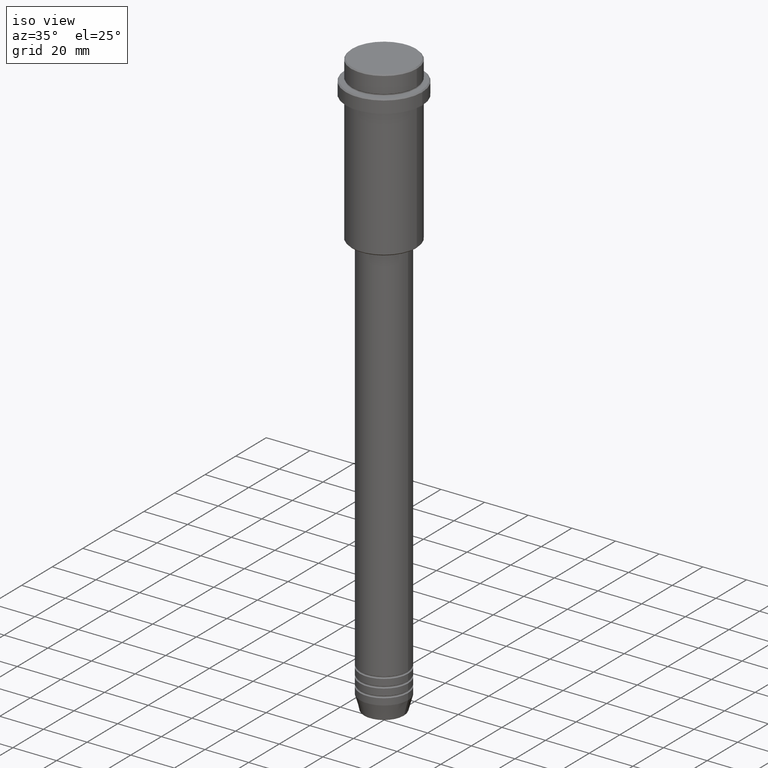
[diagram: clean part render]
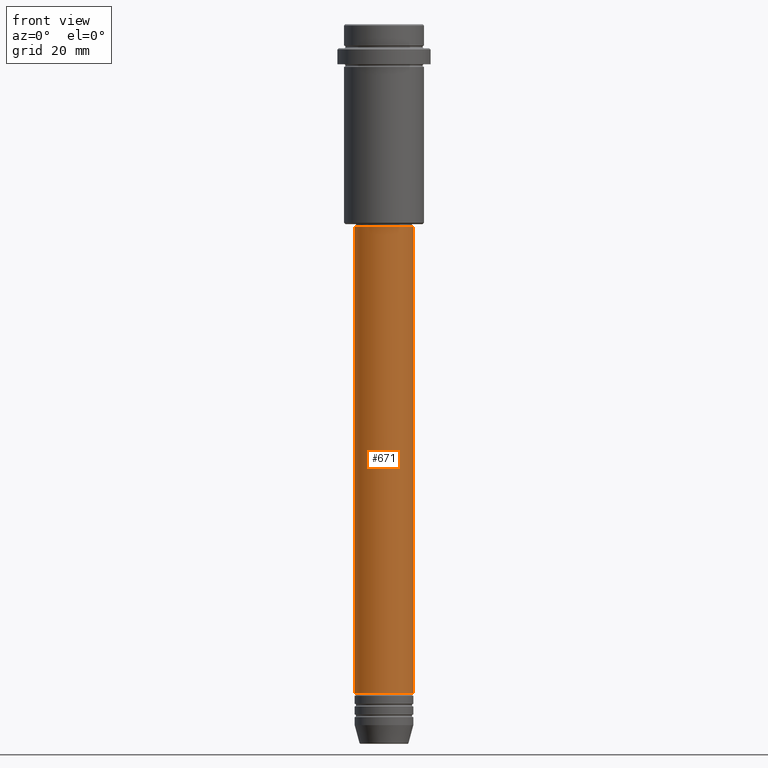
[diagram: tour spotlight — one face highlighted and labeled with its STEP entity id]
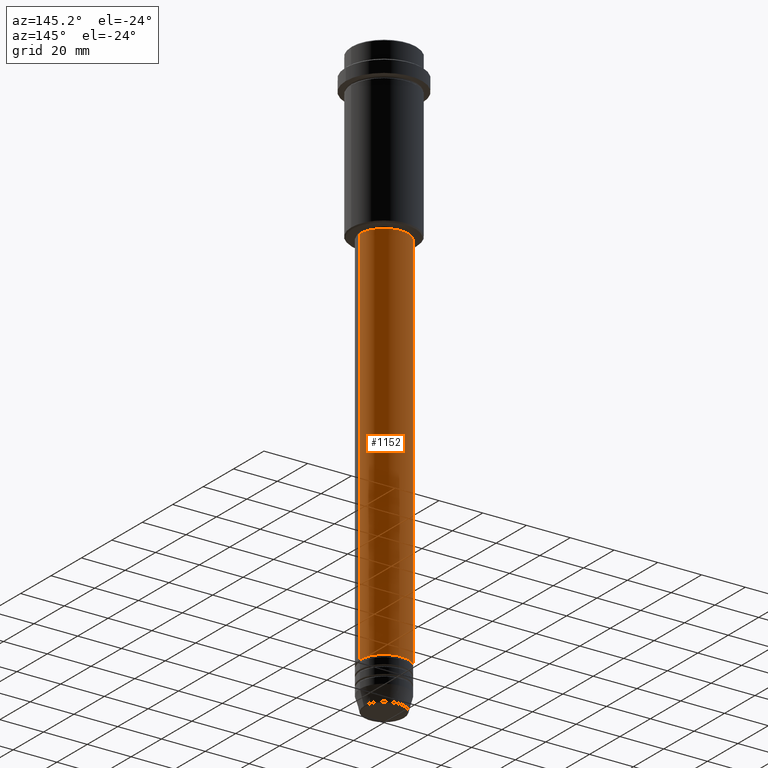
[diagram: tour spotlight — one face highlighted and labeled with its STEP entity id]
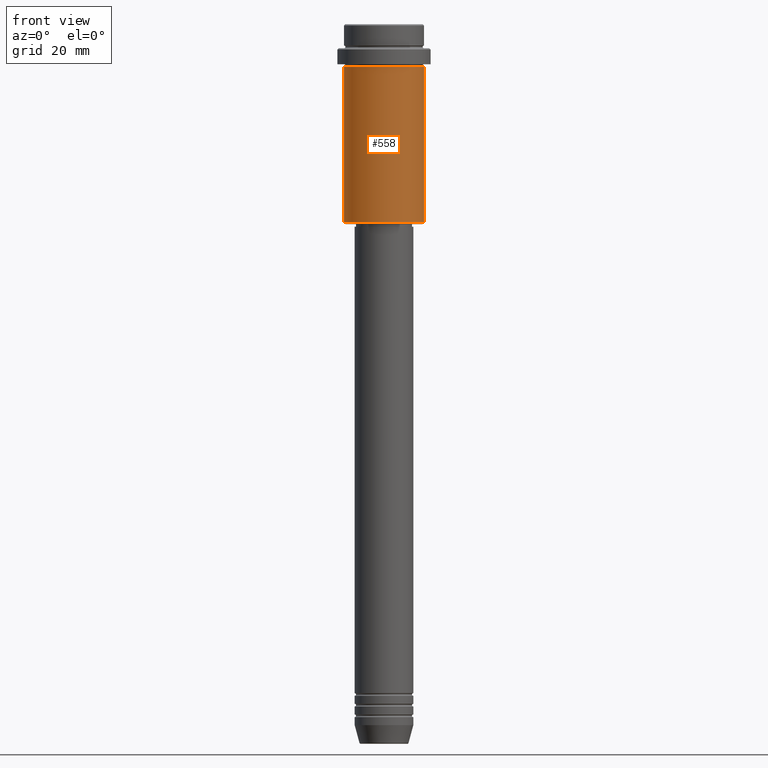
[diagram: tour spotlight — one face highlighted and labeled with its STEP entity id]
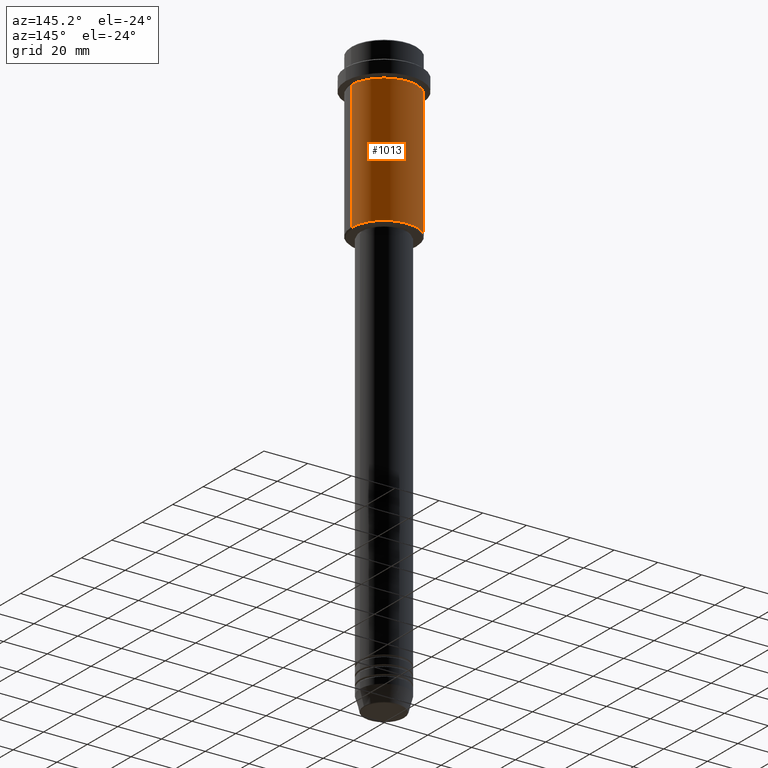
[diagram: tour spotlight — one face highlighted and labeled with its STEP entity id]
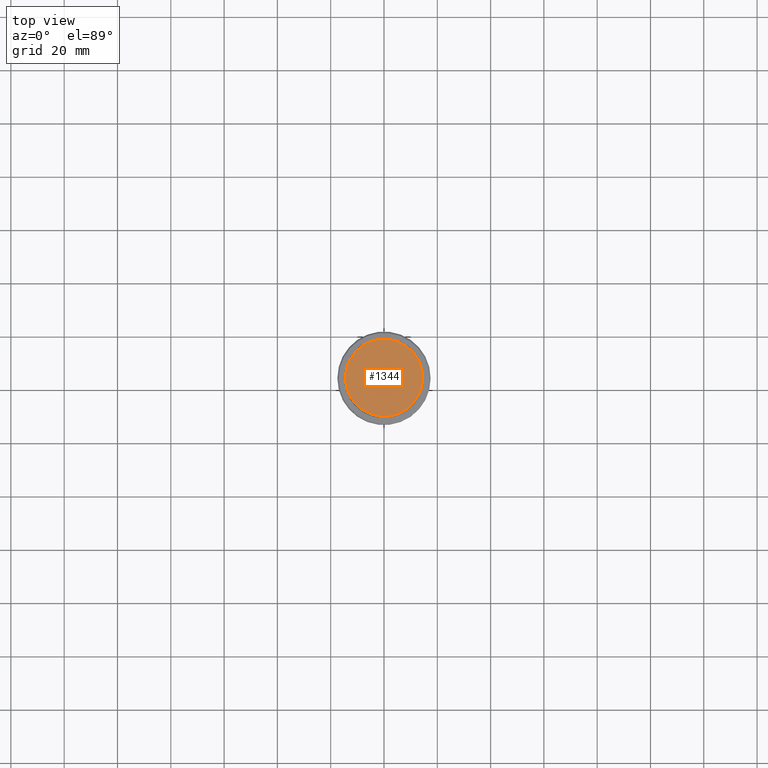
[diagram: tour spotlight — one face highlighted and labeled with its STEP entity id]
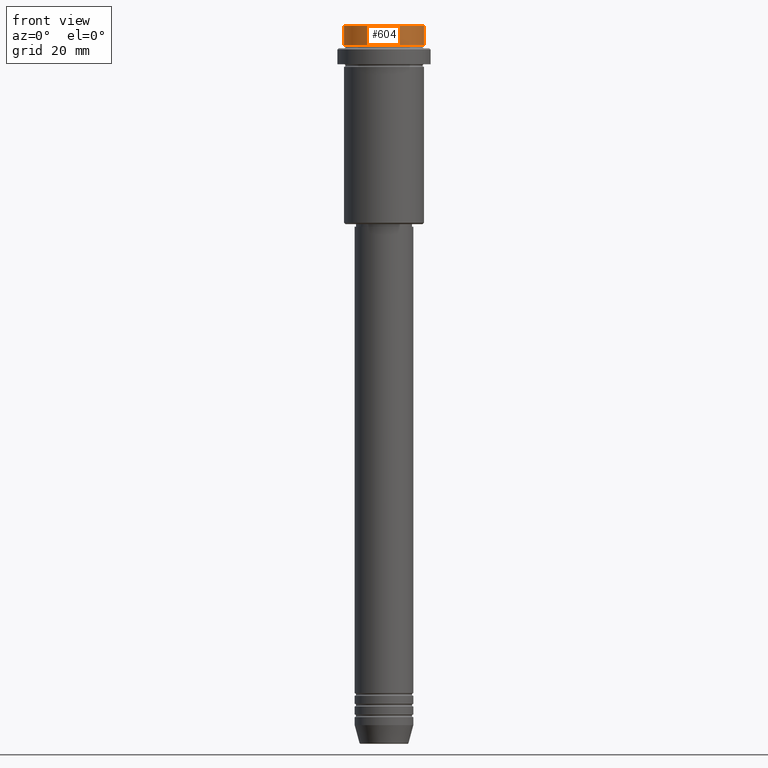
[diagram: tour spotlight — one face highlighted and labeled with its STEP entity id]
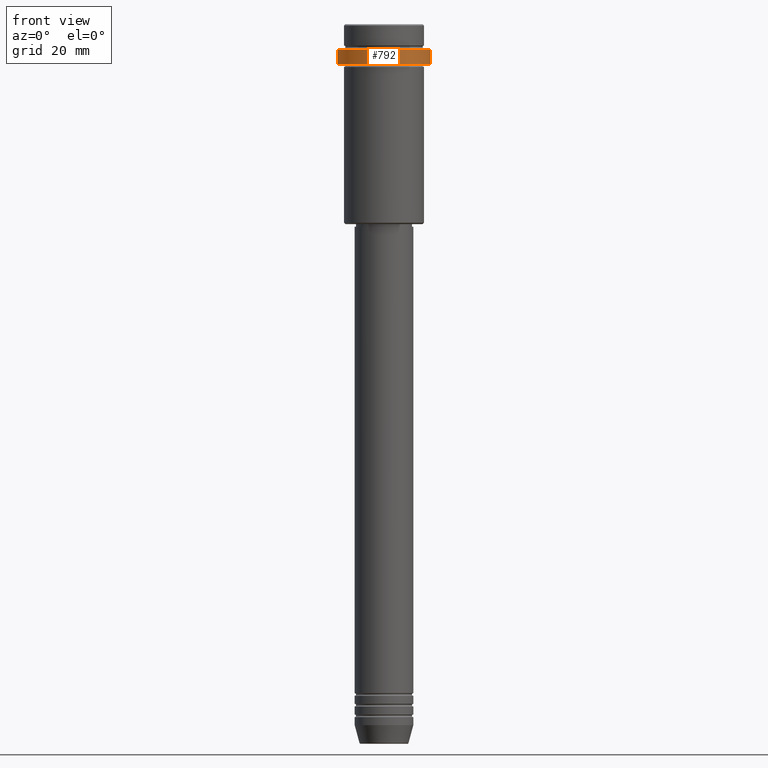
[diagram: tour spotlight — one face highlighted and labeled with its STEP entity id]
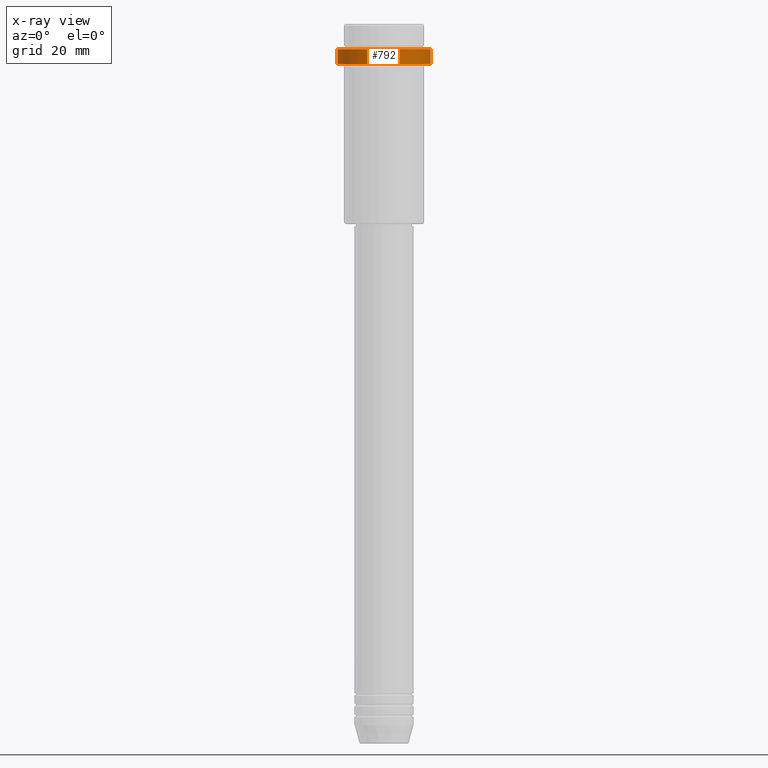
[diagram: x-ray of the same camera — body ghosted, this tour face saturated]
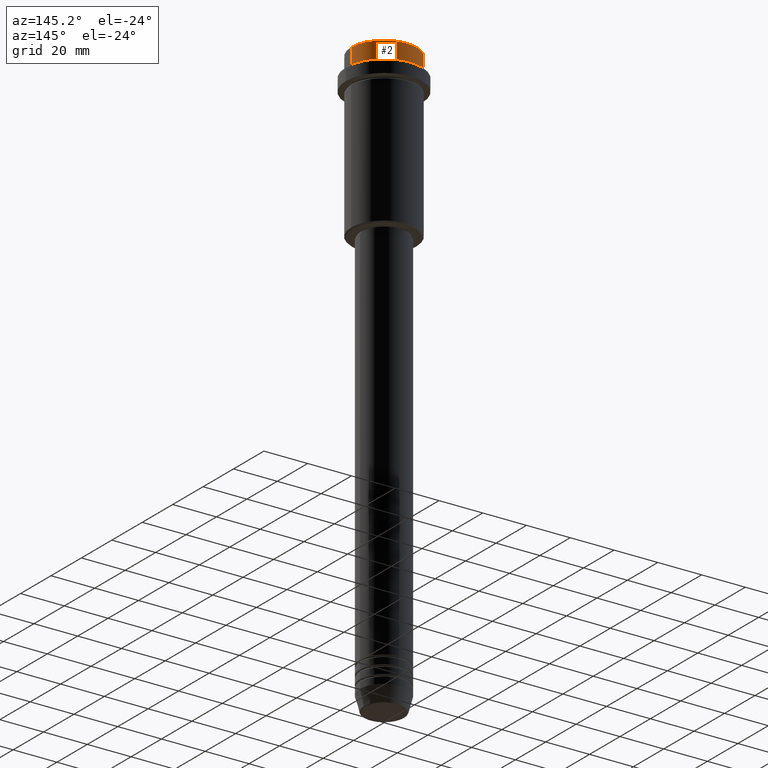
[diagram: tour spotlight — one face highlighted and labeled with its STEP entity id]
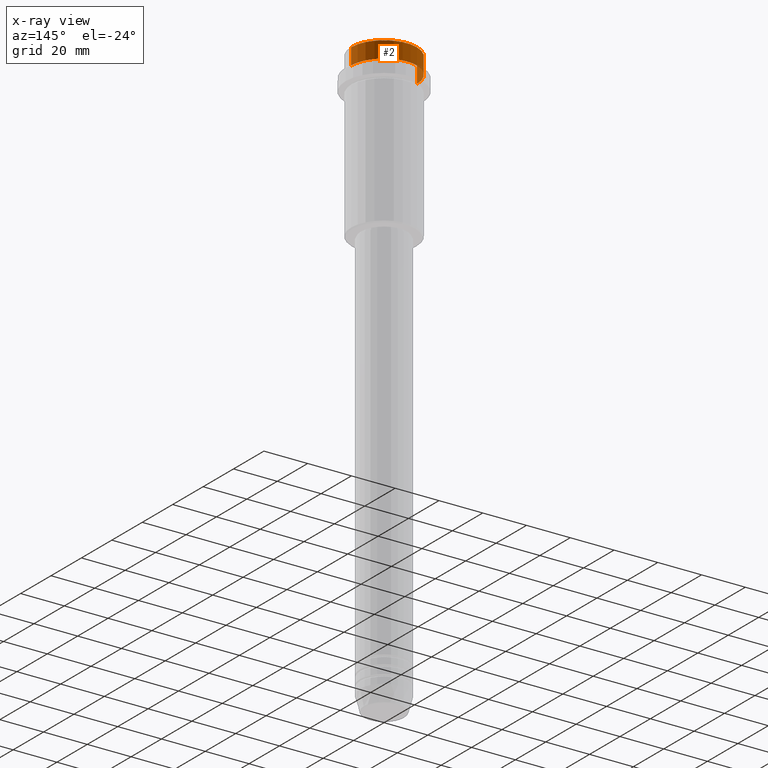
[diagram: x-ray of the same camera — body ghosted, this tour face saturated]
A machine part: a face-by-face anatomy tour. The part has 52 B-rep faces; the first image is the clean iso view, then the 8 largest visible faces are spotlighted one at a time (largest first), each with its STEP entity span.

Face 1 — front view, entity #671. In plain terms, the highlighted cylindrical surface (edge-blend (fillet) strip) has radius 11 mm, axis along (-0, -0, 1).
Definition (entity closure, byte-faithful):
#51 = CARTESIAN_POINT ( 'NONE',  ( 10.99999999999999822, 0.000000000000000000, -76.00000000000001421 ) ) ;
#132 = VERTEX_POINT ( 'NONE', #51 ) ;
#168 = CYLINDRICAL_SURFACE ( 'NONE', #205, 11.00000000000000000 ) ;
#200 = VECTOR ( 'NONE', #389, 1000.000000000000000 ) ;
#205 = AXIS2_PLACEMENT_3D ( 'NONE', #622, #509, #1354 ) ;
#254 = VECTOR ( 'NONE', #1153, 1000.000000000000000 ) ;
#273 = EDGE_CURVE ( 'NONE', #1343, #806, #401, .T. ) ;
#274 = FACE_OUTER_BOUND ( 'NONE', #494, .T. ) ;
#291 = CARTESIAN_POINT ( 'NONE',  ( -10.99999999999999822, 1.347111479062088207E-15, -76.00000000000001421 ) ) ;
#302 = CARTESIAN_POINT ( 'NONE',  ( 0.000000000000000000, 0.000000000000000000, -76.00000000000001421 ) ) ;
#319 = ORIENTED_EDGE ( 'NONE', *, *, #1085, .T. ) ;
#323 = VERTEX_POINT ( 'NONE', #291 ) ;
#389 = DIRECTION ( 'NONE',  ( -0.000000000000000000, -0.000000000000000000, 1.000000000000000000 ) ) ;
#401 = CIRCLE ( 'NONE', #490, 11.00000000000000000 ) ;
#472 = LINE ( 'NONE', #1016, #200 ) ;
#490 = AXIS2_PLACEMENT_3D ( 'NONE', #499, #818, #1010 ) ;
#494 = EDGE_LOOP ( 'NONE', ( #538, #743, #319, #796 ) ) ;
#499 = CARTESIAN_POINT ( 'NONE',  ( 0.000000000000000000, 0.000000000000000000, -250.9999999999998863 ) ) ;
#509 = DIRECTION ( 'NONE',  ( -0.000000000000000000, -0.000000000000000000, 1.000000000000000000 ) ) ;
#533 = DIRECTION ( 'NONE',  ( 1.000000000000000000, 0.000000000000000000, 0.000000000000000000 ) ) ;
#538 = ORIENTED_EDGE ( 'NONE', *, *, #632, .F. ) ;
#622 = CARTESIAN_POINT ( 'NONE',  ( 0.000000000000000000, 0.000000000000000000, 0.000000000000000000 ) ) ;
#632 = EDGE_CURVE ( 'NONE', #1343, #323, #472, .T. ) ;
#643 = CARTESIAN_POINT ( 'NONE',  ( 11.00000000000000000, 0.000000000000000000, 0.000000000000000000 ) ) ;
#646 = DIRECTION ( 'NONE',  ( -0.000000000000000000, -0.000000000000000000, 1.000000000000000000 ) ) ;
#671 = ADVANCED_FACE ( 'NONE', ( #274 ), #168, .T. ) ;
#693 = LINE ( 'NONE', #643, #254 ) ;
#743 = ORIENTED_EDGE ( 'NONE', *, *, #273, .T. ) ;
#796 = ORIENTED_EDGE ( 'NONE', *, *, #871, .F. ) ;
#806 = VERTEX_POINT ( 'NONE', #1149 ) ;
#818 = DIRECTION ( 'NONE',  ( -0.000000000000000000, -0.000000000000000000, 1.000000000000000000 ) ) ;
#823 = CIRCLE ( 'NONE', #1105, 10.99999999999999822 ) ;
#871 = EDGE_CURVE ( 'NONE', #323, #132, #823, .T. ) ;
#879 = CARTESIAN_POINT ( 'NONE',  ( -11.00000000000000000, 1.347111479062088405E-15, -250.9999999999998863 ) ) ;
#1010 = DIRECTION ( 'NONE',  ( 1.000000000000000000, 0.000000000000000000, 0.000000000000000000 ) ) ;
#1016 = CARTESIAN_POINT ( 'NONE',  ( -11.00000000000000000, 1.347111479062088405E-15, 0.000000000000000000 ) ) ;
#1085 = EDGE_CURVE ( 'NONE', #806, #132, #693, .T. ) ;
#1105 = AXIS2_PLACEMENT_3D ( 'NONE', #302, #646, #533 ) ;
#1149 = CARTESIAN_POINT ( 'NONE',  ( 11.00000000000000000, 0.000000000000000000, -250.9999999999998863 ) ) ;
#1153 = DIRECTION ( 'NONE',  ( -0.000000000000000000, -0.000000000000000000, 1.000000000000000000 ) ) ;
#1343 = VERTEX_POINT ( 'NONE', #879 ) ;
#1354 = DIRECTION ( 'NONE',  ( 1.000000000000000000, 0.000000000000000000, 0.000000000000000000 ) ) ;

Face 2 — auxiliary view, entity #1152. In plain terms, the highlighted cylindrical surface (edge-blend (fillet) strip) has radius 11 mm, axis along (-0, -0, 1).
Definition (entity closure, byte-faithful):
#51 = CARTESIAN_POINT ( 'NONE',  ( 10.99999999999999822, 0.000000000000000000, -76.00000000000001421 ) ) ;
#86 = ORIENTED_EDGE ( 'NONE', *, *, #632, .T. ) ;
#105 = AXIS2_PLACEMENT_3D ( 'NONE', #673, #1073, #856 ) ;
#130 = CYLINDRICAL_SURFACE ( 'NONE', #561, 11.00000000000000000 ) ;
#132 = VERTEX_POINT ( 'NONE', #51 ) ;
#165 = FACE_OUTER_BOUND ( 'NONE', #1326, .T. ) ;
#200 = VECTOR ( 'NONE', #389, 1000.000000000000000 ) ;
#254 = VECTOR ( 'NONE', #1153, 1000.000000000000000 ) ;
#291 = CARTESIAN_POINT ( 'NONE',  ( -10.99999999999999822, 1.347111479062088207E-15, -76.00000000000001421 ) ) ;
#323 = VERTEX_POINT ( 'NONE', #291 ) ;
#372 = AXIS2_PLACEMENT_3D ( 'NONE', #667, #873, #956 ) ;
#389 = DIRECTION ( 'NONE',  ( -0.000000000000000000, -0.000000000000000000, 1.000000000000000000 ) ) ;
#397 = CARTESIAN_POINT ( 'NONE',  ( 0.000000000000000000, 0.000000000000000000, 0.000000000000000000 ) ) ;
#472 = LINE ( 'NONE', #1016, #200 ) ;
#561 = AXIS2_PLACEMENT_3D ( 'NONE', #397, #828, #1255 ) ;
#611 = CIRCLE ( 'NONE', #105, 10.99999999999999822 ) ;
#627 = EDGE_CURVE ( 'NONE', #806, #1343, #1311, .T. ) ;
#632 = EDGE_CURVE ( 'NONE', #1343, #323, #472, .T. ) ;
#643 = CARTESIAN_POINT ( 'NONE',  ( 11.00000000000000000, 0.000000000000000000, 0.000000000000000000 ) ) ;
#667 = CARTESIAN_POINT ( 'NONE',  ( 0.000000000000000000, 0.000000000000000000, -250.9999999999998863 ) ) ;
#673 = CARTESIAN_POINT ( 'NONE',  ( 0.000000000000000000, 0.000000000000000000, -76.00000000000001421 ) ) ;
#687 = ORIENTED_EDGE ( 'NONE', *, *, #1085, .F. ) ;
#693 = LINE ( 'NONE', #643, #254 ) ;
#806 = VERTEX_POINT ( 'NONE', #1149 ) ;
#828 = DIRECTION ( 'NONE',  ( -0.000000000000000000, -0.000000000000000000, 1.000000000000000000 ) ) ;
#838 = ORIENTED_EDGE ( 'NONE', *, *, #627, .T. ) ;
#856 = DIRECTION ( 'NONE',  ( 1.000000000000000000, 0.000000000000000000, 0.000000000000000000 ) ) ;
#873 = DIRECTION ( 'NONE',  ( -0.000000000000000000, -0.000000000000000000, 1.000000000000000000 ) ) ;
#879 = CARTESIAN_POINT ( 'NONE',  ( -11.00000000000000000, 1.347111479062088405E-15, -250.9999999999998863 ) ) ;
#884 = ORIENTED_EDGE ( 'NONE', *, *, #1198, .F. ) ;
#956 = DIRECTION ( 'NONE',  ( 1.000000000000000000, 0.000000000000000000, 0.000000000000000000 ) ) ;
#1016 = CARTESIAN_POINT ( 'NONE',  ( -11.00000000000000000, 1.347111479062088405E-15, 0.000000000000000000 ) ) ;
#1073 = DIRECTION ( 'NONE',  ( -0.000000000000000000, -0.000000000000000000, 1.000000000000000000 ) ) ;
#1085 = EDGE_CURVE ( 'NONE', #806, #132, #693, .T. ) ;
#1149 = CARTESIAN_POINT ( 'NONE',  ( 11.00000000000000000, 0.000000000000000000, -250.9999999999998863 ) ) ;
#1152 = ADVANCED_FACE ( 'NONE', ( #165 ), #130, .T. ) ;
#1153 = DIRECTION ( 'NONE',  ( -0.000000000000000000, -0.000000000000000000, 1.000000000000000000 ) ) ;
#1198 = EDGE_CURVE ( 'NONE', #132, #323, #611, .T. ) ;
#1255 = DIRECTION ( 'NONE',  ( 1.000000000000000000, 0.000000000000000000, 0.000000000000000000 ) ) ;
#1311 = CIRCLE ( 'NONE', #372, 11.00000000000000000 ) ;
#1326 = EDGE_LOOP ( 'NONE', ( #838, #86, #884, #687 ) ) ;
#1343 = VERTEX_POINT ( 'NONE', #879 ) ;

Face 3 — front view, entity #558. In plain terms, the highlighted cylindrical surface (partial cylindrical patch) has radius 15 mm, axis along (-0, -0, 1).
Definition (entity closure, byte-faithful):
#37 = AXIS2_PLACEMENT_3D ( 'NONE', #994, #565, #230 ) ;
#39 = ORIENTED_EDGE ( 'NONE', *, *, #1008, .F. ) ;
#95 = DIRECTION ( 'NONE',  ( -0.000000000000000000, -0.000000000000000000, 1.000000000000000000 ) ) ;
#96 = DIRECTION ( 'NONE',  ( -0.000000000000000000, -0.000000000000000000, 1.000000000000000000 ) ) ;
#110 = EDGE_CURVE ( 'NONE', #219, #1015, #964, .T. ) ;
#160 = DIRECTION ( 'NONE',  ( -0.000000000000000000, -0.000000000000000000, 1.000000000000000000 ) ) ;
#203 = ORIENTED_EDGE ( 'NONE', *, *, #110, .T. ) ;
#219 = VERTEX_POINT ( 'NONE', #356 ) ;
#225 = CARTESIAN_POINT ( 'NONE',  ( 0.000000000000000000, 0.000000000000000000, 0.000000000000000000 ) ) ;
#230 = DIRECTION ( 'NONE',  ( -1.000000000000000000, 0.000000000000000000, 0.000000000000000000 ) ) ;
#256 = VECTOR ( 'NONE', #96, 1000.000000000000000 ) ;
#303 = ORIENTED_EDGE ( 'NONE', *, *, #1323, .F. ) ;
#356 = CARTESIAN_POINT ( 'NONE',  ( -15.00000000000000000, 1.836970198721029589E-15, -74.49999999999994316 ) ) ;
#357 = CARTESIAN_POINT ( 'NONE',  ( 0.000000000000000000, 0.000000000000000000, -16.00000000000000000 ) ) ;
#406 = LINE ( 'NONE', #501, #776 ) ;
#432 = CARTESIAN_POINT ( 'NONE',  ( -15.00000000000000355, 1.836970198721029983E-15, -16.00000000000000000 ) ) ;
#436 = CARTESIAN_POINT ( 'NONE',  ( 15.00000000000000178, 0.000000000000000000, -16.00000000000000000 ) ) ;
#441 = LINE ( 'NONE', #864, #256 ) ;
#489 = CIRCLE ( 'NONE', #514, 15.00000000000000178 ) ;
#501 = CARTESIAN_POINT ( 'NONE',  ( 15.00000000000000000, 0.000000000000000000, 0.000000000000000000 ) ) ;
#514 = AXIS2_PLACEMENT_3D ( 'NONE', #357, #786, #672 ) ;
#558 = ADVANCED_FACE ( 'NONE', ( #1288 ), #1304, .T. ) ;
#565 = DIRECTION ( 'NONE',  ( -0.000000000000000000, -0.000000000000000000, 1.000000000000000000 ) ) ;
#663 = EDGE_CURVE ( 'NONE', #1015, #910, #406, .T. ) ;
#672 = DIRECTION ( 'NONE',  ( 1.000000000000000000, 0.000000000000000000, 0.000000000000000000 ) ) ;
#776 = VECTOR ( 'NONE', #160, 1000.000000000000000 ) ;
#786 = DIRECTION ( 'NONE',  ( -0.000000000000000000, -0.000000000000000000, 1.000000000000000000 ) ) ;
#864 = CARTESIAN_POINT ( 'NONE',  ( -15.00000000000000000, 1.836970198721029589E-15, 0.000000000000000000 ) ) ;
#910 = VERTEX_POINT ( 'NONE', #436 ) ;
#964 = CIRCLE ( 'NONE', #37, 15.00000000000000000 ) ;
#994 = CARTESIAN_POINT ( 'NONE',  ( 0.000000000000000000, 0.000000000000000000, -74.49999999999994316 ) ) ;
#1008 = EDGE_CURVE ( 'NONE', #1251, #910, #489, .T. ) ;
#1015 = VERTEX_POINT ( 'NONE', #1207 ) ;
#1207 = CARTESIAN_POINT ( 'NONE',  ( 15.00000000000000000, 0.000000000000000000, -74.49999999999994316 ) ) ;
#1217 = ORIENTED_EDGE ( 'NONE', *, *, #663, .T. ) ;
#1251 = VERTEX_POINT ( 'NONE', #432 ) ;
#1288 = FACE_OUTER_BOUND ( 'NONE', #1373, .T. ) ;
#1304 = CYLINDRICAL_SURFACE ( 'NONE', #1318, 15.00000000000000000 ) ;
#1318 = AXIS2_PLACEMENT_3D ( 'NONE', #225, #95, #1415 ) ;
#1323 = EDGE_CURVE ( 'NONE', #219, #1251, #441, .T. ) ;
#1373 = EDGE_LOOP ( 'NONE', ( #303, #203, #1217, #39 ) ) ;
#1415 = DIRECTION ( 'NONE',  ( 1.000000000000000000, 0.000000000000000000, 0.000000000000000000 ) ) ;

Face 4 — auxiliary view, entity #1013. In plain terms, the highlighted cylindrical surface (partial cylindrical patch) has radius 15 mm, axis along (-0, -0, 1).
Definition (entity closure, byte-faithful):
#49 = CARTESIAN_POINT ( 'NONE',  ( 0.000000000000000000, 0.000000000000000000, -16.00000000000000000 ) ) ;
#84 = CIRCLE ( 'NONE', #1031, 15.00000000000000000 ) ;
#96 = DIRECTION ( 'NONE',  ( -0.000000000000000000, -0.000000000000000000, 1.000000000000000000 ) ) ;
#154 = AXIS2_PLACEMENT_3D ( 'NONE', #49, #1216, #907 ) ;
#160 = DIRECTION ( 'NONE',  ( -0.000000000000000000, -0.000000000000000000, 1.000000000000000000 ) ) ;
#174 = ORIENTED_EDGE ( 'NONE', *, *, #663, .F. ) ;
#183 = AXIS2_PLACEMENT_3D ( 'NONE', #553, #987, #1086 ) ;
#219 = VERTEX_POINT ( 'NONE', #356 ) ;
#256 = VECTOR ( 'NONE', #96, 1000.000000000000000 ) ;
#332 = CYLINDRICAL_SURFACE ( 'NONE', #183, 15.00000000000000000 ) ;
#342 = DIRECTION ( 'NONE',  ( -0.000000000000000000, -0.000000000000000000, 1.000000000000000000 ) ) ;
#356 = CARTESIAN_POINT ( 'NONE',  ( -15.00000000000000000, 1.836970198721029589E-15, -74.49999999999994316 ) ) ;
#406 = LINE ( 'NONE', #501, #776 ) ;
#432 = CARTESIAN_POINT ( 'NONE',  ( -15.00000000000000355, 1.836970198721029983E-15, -16.00000000000000000 ) ) ;
#436 = CARTESIAN_POINT ( 'NONE',  ( 15.00000000000000178, 0.000000000000000000, -16.00000000000000000 ) ) ;
#441 = LINE ( 'NONE', #864, #256 ) ;
#452 = CARTESIAN_POINT ( 'NONE',  ( 0.000000000000000000, 0.000000000000000000, -74.49999999999994316 ) ) ;
#501 = CARTESIAN_POINT ( 'NONE',  ( 15.00000000000000000, 0.000000000000000000, 0.000000000000000000 ) ) ;
#526 = ORIENTED_EDGE ( 'NONE', *, *, #1323, .T. ) ;
#553 = CARTESIAN_POINT ( 'NONE',  ( 0.000000000000000000, 0.000000000000000000, 0.000000000000000000 ) ) ;
#578 = EDGE_CURVE ( 'NONE', #1015, #219, #84, .T. ) ;
#663 = EDGE_CURVE ( 'NONE', #1015, #910, #406, .T. ) ;
#708 = EDGE_LOOP ( 'NONE', ( #820, #526, #1353, #174 ) ) ;
#776 = VECTOR ( 'NONE', #160, 1000.000000000000000 ) ;
#777 = FACE_OUTER_BOUND ( 'NONE', #708, .T. ) ;
#820 = ORIENTED_EDGE ( 'NONE', *, *, #578, .T. ) ;
#864 = CARTESIAN_POINT ( 'NONE',  ( -15.00000000000000000, 1.836970198721029589E-15, 0.000000000000000000 ) ) ;
#866 = CIRCLE ( 'NONE', #154, 15.00000000000000178 ) ;
#907 = DIRECTION ( 'NONE',  ( 1.000000000000000000, 0.000000000000000000, 0.000000000000000000 ) ) ;
#910 = VERTEX_POINT ( 'NONE', #436 ) ;
#987 = DIRECTION ( 'NONE',  ( -0.000000000000000000, -0.000000000000000000, 1.000000000000000000 ) ) ;
#1013 = ADVANCED_FACE ( 'NONE', ( #777 ), #332, .T. ) ;
#1015 = VERTEX_POINT ( 'NONE', #1207 ) ;
#1031 = AXIS2_PLACEMENT_3D ( 'NONE', #452, #342, #1200 ) ;
#1079 = EDGE_CURVE ( 'NONE', #910, #1251, #866, .T. ) ;
#1086 = DIRECTION ( 'NONE',  ( 1.000000000000000000, 0.000000000000000000, 0.000000000000000000 ) ) ;
#1200 = DIRECTION ( 'NONE',  ( -1.000000000000000000, 0.000000000000000000, 0.000000000000000000 ) ) ;
#1207 = CARTESIAN_POINT ( 'NONE',  ( 15.00000000000000000, 0.000000000000000000, -74.49999999999994316 ) ) ;
#1216 = DIRECTION ( 'NONE',  ( -0.000000000000000000, -0.000000000000000000, 1.000000000000000000 ) ) ;
#1251 = VERTEX_POINT ( 'NONE', #432 ) ;
#1323 = EDGE_CURVE ( 'NONE', #219, #1251, #441, .T. ) ;
#1353 = ORIENTED_EDGE ( 'NONE', *, *, #1079, .F. ) ;

Face 5 — top view, entity #1344. In plain terms, the highlighted planar face has unit normal (0, -0, 1).
Definition (entity closure, byte-faithful):
#27 = ORIENTED_EDGE ( 'NONE', *, *, #331, .T. ) ;
#118 = EDGE_CURVE ( 'NONE', #500, #1069, #610, .T. ) ;
#119 = FACE_OUTER_BOUND ( 'NONE', #147, .T. ) ;
#147 = EDGE_LOOP ( 'NONE', ( #394, #27 ) ) ;
#277 = DIRECTION ( 'NONE',  ( 1.000000000000000000, 0.000000000000000000, 0.000000000000000000 ) ) ;
#309 = AXIS2_PLACEMENT_3D ( 'NONE', #659, #383, #277 ) ;
#331 = EDGE_CURVE ( 'NONE', #1069, #500, #564, .T. ) ;
#334 = AXIS2_PLACEMENT_3D ( 'NONE', #1230, #566, #1005 ) ;
#383 = DIRECTION ( 'NONE',  ( -0.000000000000000000, -0.000000000000000000, 1.000000000000000000 ) ) ;
#394 = ORIENTED_EDGE ( 'NONE', *, *, #118, .T. ) ;
#396 = DIRECTION ( 'NONE',  ( -0.000000000000000000, -0.000000000000000000, 1.000000000000000000 ) ) ;
#445 = AXIS2_PLACEMENT_3D ( 'NONE', #1356, #396, #1368 ) ;
#477 = CARTESIAN_POINT ( 'NONE',  ( 14.50000000000003908, 1.806354028742348168E-15, 0.000000000000000000 ) ) ;
#500 = VERTEX_POINT ( 'NONE', #567 ) ;
#564 = CIRCLE ( 'NONE', #309, 14.50000000000003908 ) ;
#566 = DIRECTION ( 'NONE',  ( 0.000000000000000000, -0.000000000000000000, 1.000000000000000000 ) ) ;
#567 = CARTESIAN_POINT ( 'NONE',  ( -14.50000000000003908, 0.000000000000000000, 0.000000000000000000 ) ) ;
#610 = CIRCLE ( 'NONE', #445, 14.50000000000003908 ) ;
#659 = CARTESIAN_POINT ( 'NONE',  ( 0.000000000000000000, 0.000000000000000000, 0.000000000000000000 ) ) ;
#1005 = DIRECTION ( 'NONE',  ( 1.000000000000000000, 0.000000000000000000, 0.000000000000000000 ) ) ;
#1069 = VERTEX_POINT ( 'NONE', #477 ) ;
#1230 = CARTESIAN_POINT ( 'NONE',  ( 0.000000000000000000, 0.000000000000000000, 0.000000000000000000 ) ) ;
#1306 = PLANE ( 'NONE',  #334 ) ;
#1344 = ADVANCED_FACE ( 'NONE', ( #119 ), #1306, .T. ) ;
#1356 = CARTESIAN_POINT ( 'NONE',  ( 0.000000000000000000, 0.000000000000000000, 0.000000000000000000 ) ) ;
#1368 = DIRECTION ( 'NONE',  ( 1.000000000000000000, 0.000000000000000000, 0.000000000000000000 ) ) ;

Face 6 — front view, entity #604. In plain terms, the highlighted cylindrical surface (partial cylindrical patch) has radius 15 mm, axis along (-0, -0, 1).
Definition (entity closure, byte-faithful):
#24 = ORIENTED_EDGE ( 'NONE', *, *, #863, .T. ) ;
#48 = DIRECTION ( 'NONE',  ( -0.000000000000000000, -0.000000000000000000, 1.000000000000000000 ) ) ;
#97 = EDGE_CURVE ( 'NONE', #692, #410, #576, .T. ) ;
#101 = CIRCLE ( 'NONE', #761, 15.00000000000000000 ) ;
#123 = VECTOR ( 'NONE', #1265, 1000.000000000000000 ) ;
#204 = CYLINDRICAL_SURFACE ( 'NONE', #539, 15.00000000000000000 ) ;
#229 = VECTOR ( 'NONE', #781, 1000.000000000000000 ) ;
#249 = DIRECTION ( 'NONE',  ( 1.000000000000000000, 0.000000000000000000, 0.000000000000000000 ) ) ;
#311 = VERTEX_POINT ( 'NONE', #395 ) ;
#373 = CARTESIAN_POINT ( 'NONE',  ( -15.00000000000000000, 1.836970198721029589E-15, 0.000000000000000000 ) ) ;
#395 = CARTESIAN_POINT ( 'NONE',  ( 15.00000000000000000, 0.000000000000000000, -7.999999999999998224 ) ) ;
#410 = VERTEX_POINT ( 'NONE', #770 ) ;
#418 = ORIENTED_EDGE ( 'NONE', *, *, #97, .F. ) ;
#483 = CARTESIAN_POINT ( 'NONE',  ( -15.00000000000000000, 1.836970198721029589E-15, -7.999999999999998224 ) ) ;
#539 = AXIS2_PLACEMENT_3D ( 'NONE', #1351, #48, #934 ) ;
#549 = LINE ( 'NONE', #740, #123 ) ;
#568 = CARTESIAN_POINT ( 'NONE',  ( 0.000000000000000000, 0.000000000000000000, -0.4999999999999831246 ) ) ;
#576 = LINE ( 'NONE', #373, #229 ) ;
#582 = AXIS2_PLACEMENT_3D ( 'NONE', #568, #1417, #249 ) ;
#604 = ADVANCED_FACE ( 'NONE', ( #1181 ), #204, .T. ) ;
#609 = CIRCLE ( 'NONE', #582, 15.00000000000000000 ) ;
#692 = VERTEX_POINT ( 'NONE', #483 ) ;
#740 = CARTESIAN_POINT ( 'NONE',  ( 15.00000000000000000, 0.000000000000000000, 0.000000000000000000 ) ) ;
#746 = EDGE_CURVE ( 'NONE', #692, #311, #101, .T. ) ;
#761 = AXIS2_PLACEMENT_3D ( 'NONE', #821, #1014, #1235 ) ;
#770 = CARTESIAN_POINT ( 'NONE',  ( -15.00000000000000000, 1.836970198721029589E-15, -0.4999999999999831246 ) ) ;
#781 = DIRECTION ( 'NONE',  ( -0.000000000000000000, -0.000000000000000000, 1.000000000000000000 ) ) ;
#821 = CARTESIAN_POINT ( 'NONE',  ( 0.000000000000000000, 0.000000000000000000, -7.999999999999998224 ) ) ;
#863 = EDGE_CURVE ( 'NONE', #311, #1366, #549, .T. ) ;
#934 = DIRECTION ( 'NONE',  ( 1.000000000000000000, 0.000000000000000000, 0.000000000000000000 ) ) ;
#936 = ORIENTED_EDGE ( 'NONE', *, *, #1061, .T. ) ;
#958 = ORIENTED_EDGE ( 'NONE', *, *, #746, .T. ) ;
#971 = EDGE_LOOP ( 'NONE', ( #418, #958, #24, #936 ) ) ;
#1014 = DIRECTION ( 'NONE',  ( -0.000000000000000000, -0.000000000000000000, 1.000000000000000000 ) ) ;
#1061 = EDGE_CURVE ( 'NONE', #1366, #410, #609, .T. ) ;
#1181 = FACE_OUTER_BOUND ( 'NONE', #971, .T. ) ;
#1208 = CARTESIAN_POINT ( 'NONE',  ( 15.00000000000000000, 0.000000000000000000, -0.4999999999999831246 ) ) ;
#1235 = DIRECTION ( 'NONE',  ( 1.000000000000000000, 0.000000000000000000, 0.000000000000000000 ) ) ;
#1265 = DIRECTION ( 'NONE',  ( -0.000000000000000000, -0.000000000000000000, 1.000000000000000000 ) ) ;
#1351 = CARTESIAN_POINT ( 'NONE',  ( 0.000000000000000000, 0.000000000000000000, 0.000000000000000000 ) ) ;
#1366 = VERTEX_POINT ( 'NONE', #1208 ) ;
#1417 = DIRECTION ( 'NONE',  ( 0.000000000000000000, 0.000000000000000000, -1.000000000000000000 ) ) ;

Face 7 — front view, entity #792. An x-ray twin of the same camera follows (body ghosted, this face saturated) — the face is partly hidden behind the body. In plain terms, the highlighted cylindrical surface (partial cylindrical patch) has radius 17.5 mm, axis along (-0, -0, 1).
Definition (entity closure, byte-faithful):
#7 = VECTOR ( 'NONE', #860, 1000.000000000000000 ) ;
#17 = CARTESIAN_POINT ( 'NONE',  ( 17.50000000000000000, 0.000000000000000000, 0.000000000000000000 ) ) ;
#32 = AXIS2_PLACEMENT_3D ( 'NONE', #953, #202, #750 ) ;
#161 = ORIENTED_EDGE ( 'NONE', *, *, #471, .T. ) ;
#187 = AXIS2_PLACEMENT_3D ( 'NONE', #1187, #1270, #212 ) ;
#202 = DIRECTION ( 'NONE',  ( -0.000000000000000000, -0.000000000000000000, 1.000000000000000000 ) ) ;
#212 = DIRECTION ( 'NONE',  ( 1.000000000000000000, 0.000000000000000000, 0.000000000000000000 ) ) ;
#222 = CARTESIAN_POINT ( 'NONE',  ( 0.000000000000000000, 0.000000000000000000, -9.500000000000028422 ) ) ;
#262 = VERTEX_POINT ( 'NONE', #1132 ) ;
#276 = CARTESIAN_POINT ( 'NONE',  ( -17.50000000000000000, 2.143131898507868248E-15, -15.00000000000000178 ) ) ;
#305 = EDGE_CURVE ( 'NONE', #644, #262, #570, .T. ) ;
#327 = DIRECTION ( 'NONE',  ( 0.000000000000000000, 0.000000000000000000, -1.000000000000000000 ) ) ;
#329 = EDGE_LOOP ( 'NONE', ( #843, #161, #857, #760 ) ) ;
#468 = EDGE_CURVE ( 'NONE', #1242, #867, #1320, .T. ) ;
#471 = EDGE_CURVE ( 'NONE', #644, #1242, #919, .T. ) ;
#503 = DIRECTION ( 'NONE',  ( -0.000000000000000000, -0.000000000000000000, 1.000000000000000000 ) ) ;
#521 = CARTESIAN_POINT ( 'NONE',  ( -17.50000000000000000, 2.143131898507868248E-15, 0.000000000000000000 ) ) ;
#570 = LINE ( 'NONE', #521, #700 ) ;
#644 = VERTEX_POINT ( 'NONE', #276 ) ;
#700 = VECTOR ( 'NONE', #503, 1000.000000000000000 ) ;
#735 = CYLINDRICAL_SURFACE ( 'NONE', #32, 17.50000000000000000 ) ;
#750 = DIRECTION ( 'NONE',  ( 1.000000000000000000, 0.000000000000000000, 0.000000000000000000 ) ) ;
#760 = ORIENTED_EDGE ( 'NONE', *, *, #1302, .T. ) ;
#792 = ADVANCED_FACE ( 'NONE', ( #966 ), #735, .T. ) ;
#843 = ORIENTED_EDGE ( 'NONE', *, *, #305, .F. ) ;
#857 = ORIENTED_EDGE ( 'NONE', *, *, #468, .T. ) ;
#860 = DIRECTION ( 'NONE',  ( -0.000000000000000000, -0.000000000000000000, 1.000000000000000000 ) ) ;
#867 = VERTEX_POINT ( 'NONE', #1398 ) ;
#876 = CARTESIAN_POINT ( 'NONE',  ( 17.50000000000000000, 0.000000000000000000, -15.00000000000000178 ) ) ;
#919 = CIRCLE ( 'NONE', #187, 17.50000000000000000 ) ;
#943 = AXIS2_PLACEMENT_3D ( 'NONE', #222, #327, #1184 ) ;
#953 = CARTESIAN_POINT ( 'NONE',  ( 0.000000000000000000, 0.000000000000000000, 0.000000000000000000 ) ) ;
#966 = FACE_OUTER_BOUND ( 'NONE', #329, .T. ) ;
#1132 = CARTESIAN_POINT ( 'NONE',  ( -17.50000000000000000, 2.143131898507868248E-15, -9.500000000000028422 ) ) ;
#1160 = CIRCLE ( 'NONE', #943, 17.50000000000000000 ) ;
#1184 = DIRECTION ( 'NONE',  ( 1.000000000000000000, 0.000000000000000000, 0.000000000000000000 ) ) ;
#1187 = CARTESIAN_POINT ( 'NONE',  ( 0.000000000000000000, 0.000000000000000000, -15.00000000000000178 ) ) ;
#1242 = VERTEX_POINT ( 'NONE', #876 ) ;
#1270 = DIRECTION ( 'NONE',  ( -0.000000000000000000, -0.000000000000000000, 1.000000000000000000 ) ) ;
#1302 = EDGE_CURVE ( 'NONE', #867, #262, #1160, .T. ) ;
#1320 = LINE ( 'NONE', #17, #7 ) ;
#1398 = CARTESIAN_POINT ( 'NONE',  ( 17.50000000000000000, 0.000000000000000000, -9.500000000000028422 ) ) ;

Face 8 — auxiliary view, entity #2. An x-ray twin of the same camera follows (body ghosted, this face saturated) — the face is partly hidden behind the body. In plain terms, the highlighted cylindrical surface (partial cylindrical patch) has radius 15 mm, axis along (-0, -0, 1).
Definition (entity closure, byte-faithful):
#2 = ADVANCED_FACE ( 'NONE', ( #266 ), #146, .T. ) ;
#68 = DIRECTION ( 'NONE',  ( -0.000000000000000000, -0.000000000000000000, 1.000000000000000000 ) ) ;
#97 = EDGE_CURVE ( 'NONE', #692, #410, #576, .T. ) ;
#123 = VECTOR ( 'NONE', #1265, 1000.000000000000000 ) ;
#146 = CYLINDRICAL_SURFACE ( 'NONE', #869, 15.00000000000000000 ) ;
#164 = DIRECTION ( 'NONE',  ( -0.000000000000000000, -0.000000000000000000, 1.000000000000000000 ) ) ;
#227 = AXIS2_PLACEMENT_3D ( 'NONE', #629, #68, #1379 ) ;
#229 = VECTOR ( 'NONE', #781, 1000.000000000000000 ) ;
#266 = FACE_OUTER_BOUND ( 'NONE', #813, .T. ) ;
#293 = DIRECTION ( 'NONE',  ( 0.000000000000000000, 0.000000000000000000, -1.000000000000000000 ) ) ;
#311 = VERTEX_POINT ( 'NONE', #395 ) ;
#316 = CIRCLE ( 'NONE', #1384, 15.00000000000000000 ) ;
#373 = CARTESIAN_POINT ( 'NONE',  ( -15.00000000000000000, 1.836970198721029589E-15, 0.000000000000000000 ) ) ;
#395 = CARTESIAN_POINT ( 'NONE',  ( 15.00000000000000000, 0.000000000000000000, -7.999999999999998224 ) ) ;
#410 = VERTEX_POINT ( 'NONE', #770 ) ;
#476 = EDGE_CURVE ( 'NONE', #410, #1366, #316, .T. ) ;
#483 = CARTESIAN_POINT ( 'NONE',  ( -15.00000000000000000, 1.836970198721029589E-15, -7.999999999999998224 ) ) ;
#484 = ORIENTED_EDGE ( 'NONE', *, *, #476, .T. ) ;
#549 = LINE ( 'NONE', #740, #123 ) ;
#576 = LINE ( 'NONE', #373, #229 ) ;
#617 = ORIENTED_EDGE ( 'NONE', *, *, #863, .F. ) ;
#621 = DIRECTION ( 'NONE',  ( 1.000000000000000000, 0.000000000000000000, 0.000000000000000000 ) ) ;
#629 = CARTESIAN_POINT ( 'NONE',  ( 0.000000000000000000, 0.000000000000000000, -7.999999999999998224 ) ) ;
#692 = VERTEX_POINT ( 'NONE', #483 ) ;
#718 = CARTESIAN_POINT ( 'NONE',  ( 0.000000000000000000, 0.000000000000000000, 0.000000000000000000 ) ) ;
#740 = CARTESIAN_POINT ( 'NONE',  ( 15.00000000000000000, 0.000000000000000000, 0.000000000000000000 ) ) ;
#770 = CARTESIAN_POINT ( 'NONE',  ( -15.00000000000000000, 1.836970198721029589E-15, -0.4999999999999831246 ) ) ;
#781 = DIRECTION ( 'NONE',  ( -0.000000000000000000, -0.000000000000000000, 1.000000000000000000 ) ) ;
#813 = EDGE_LOOP ( 'NONE', ( #854, #834, #484, #617 ) ) ;
#819 = EDGE_CURVE ( 'NONE', #311, #692, #825, .T. ) ;
#825 = CIRCLE ( 'NONE', #227, 15.00000000000000000 ) ;
#834 = ORIENTED_EDGE ( 'NONE', *, *, #97, .T. ) ;
#854 = ORIENTED_EDGE ( 'NONE', *, *, #819, .T. ) ;
#863 = EDGE_CURVE ( 'NONE', #311, #1366, #549, .T. ) ;
#869 = AXIS2_PLACEMENT_3D ( 'NONE', #718, #164, #921 ) ;
#921 = DIRECTION ( 'NONE',  ( 1.000000000000000000, 0.000000000000000000, 0.000000000000000000 ) ) ;
#1168 = CARTESIAN_POINT ( 'NONE',  ( 0.000000000000000000, 0.000000000000000000, -0.4999999999999831246 ) ) ;
#1208 = CARTESIAN_POINT ( 'NONE',  ( 15.00000000000000000, 0.000000000000000000, -0.4999999999999831246 ) ) ;
#1265 = DIRECTION ( 'NONE',  ( -0.000000000000000000, -0.000000000000000000, 1.000000000000000000 ) ) ;
#1366 = VERTEX_POINT ( 'NONE', #1208 ) ;
#1379 = DIRECTION ( 'NONE',  ( 1.000000000000000000, 0.000000000000000000, 0.000000000000000000 ) ) ;
#1384 = AXIS2_PLACEMENT_3D ( 'NONE', #1168, #293, #621 ) ;